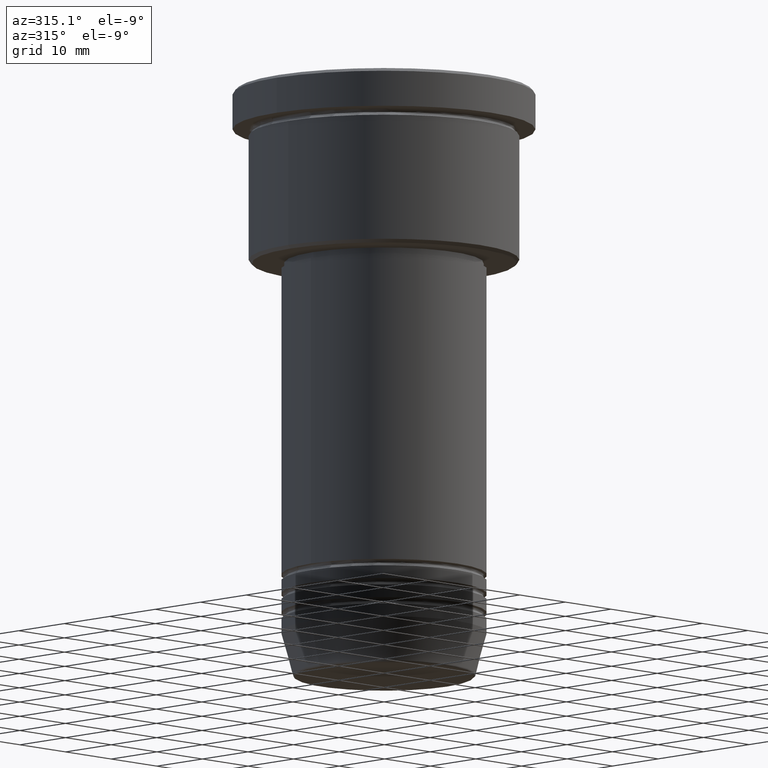
[diagram: clean part render]
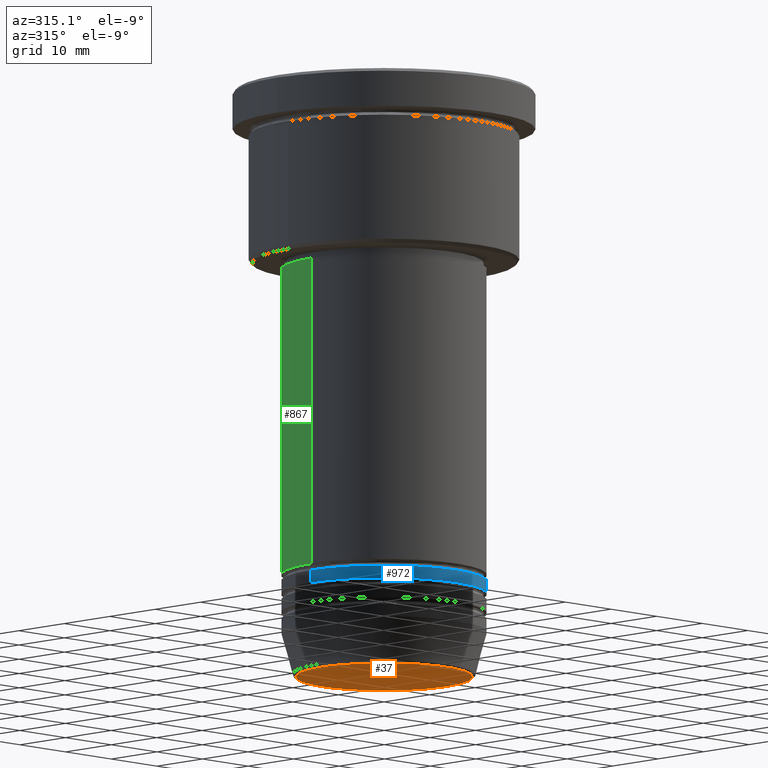
[diagram: same view with three faces highlighted in distinct colors, each labeled with its STEP entity id]
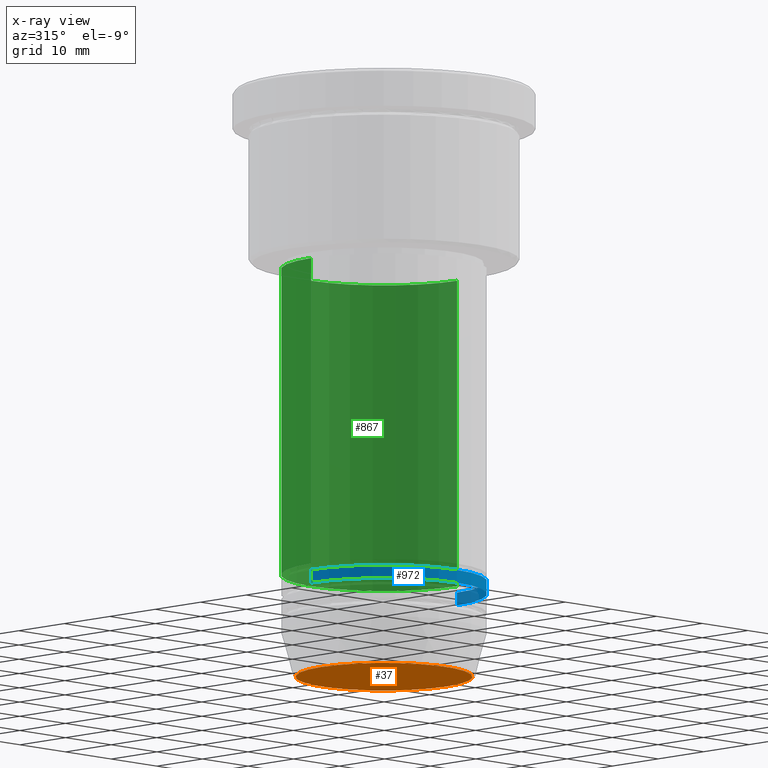
[diagram: x-ray of the same camera — body ghosted, the three highlighted faces saturated]
A machine part, auxiliary view with three faces highlighted in distinct colors.
The next image is the same camera in x-ray (body ghosted, the three faces saturated) — at least one of them is partly hidden behind the body in this view.
Their STEP definitions:

[orange] entity #37 — the highlighted planar face has unit normal (0, -0, 1).
#37 = ADVANCED_FACE ( 'NONE', ( #944 ), #130, .F. ) ;
#108 = ORIENTED_EDGE ( 'NONE', *, *, #751, .T. ) ;
#111 = DIRECTION ( 'NONE',  ( 0.000000000000000000, -0.000000000000000000, 1.000000000000000000 ) ) ;
#120 = EDGE_LOOP ( 'NONE', ( #287, #108 ) ) ;
#130 = PLANE ( 'NONE',  #836 ) ;
#153 = CARTESIAN_POINT ( 'NONE',  ( 13.74069215899265473, 0.000000000000000000, -92.00000000000000000 ) ) ;
#158 = CARTESIAN_POINT ( 'NONE',  ( 0.000000000000000000, 0.000000000000000000, -92.00000000000000000 ) ) ;
#204 = CIRCLE ( 'NONE', #356, 13.74069215899265473 ) ;
#216 = DIRECTION ( 'NONE',  ( 1.000000000000000000, 0.000000000000000000, 0.000000000000000000 ) ) ;
#271 = CARTESIAN_POINT ( 'NONE',  ( -13.74069215899265473, 1.712322416342415591E-15, -92.00000000000000000 ) ) ;
#287 = ORIENTED_EDGE ( 'NONE', *, *, #1147, .T. ) ;
#356 = AXIS2_PLACEMENT_3D ( 'NONE', #702, #687, #526 ) ;
#469 = AXIS2_PLACEMENT_3D ( 'NONE', #158, #1040, #611 ) ;
#526 = DIRECTION ( 'NONE',  ( 1.000000000000000000, 0.000000000000000000, 0.000000000000000000 ) ) ;
#605 = CIRCLE ( 'NONE', #469, 13.74069215899265473 ) ;
#611 = DIRECTION ( 'NONE',  ( 1.000000000000000000, 0.000000000000000000, 0.000000000000000000 ) ) ;
#687 = DIRECTION ( 'NONE',  ( 0.000000000000000000, 0.000000000000000000, -1.000000000000000000 ) ) ;
#702 = CARTESIAN_POINT ( 'NONE',  ( 0.000000000000000000, 0.000000000000000000, -92.00000000000000000 ) ) ;
#751 = EDGE_CURVE ( 'NONE', #796, #1134, #204, .T. ) ;
#796 = VERTEX_POINT ( 'NONE', #271 ) ;
#836 = AXIS2_PLACEMENT_3D ( 'NONE', #1020, #111, #216 ) ;
#944 = FACE_OUTER_BOUND ( 'NONE', #120, .T. ) ;
#1020 = CARTESIAN_POINT ( 'NONE',  ( 0.000000000000000000, 0.000000000000000000, -92.00000000000000000 ) ) ;
#1040 = DIRECTION ( 'NONE',  ( 0.000000000000000000, 0.000000000000000000, -1.000000000000000000 ) ) ;
#1134 = VERTEX_POINT ( 'NONE', #153 ) ;
#1147 = EDGE_CURVE ( 'NONE', #1134, #796, #605, .T. ) ;

[blue] entity #972 — the highlighted cylindrical surface (partial cylindrical patch) has radius 16 mm, axis along (-0, -0, 1).
#24 = DIRECTION ( 'NONE',  ( 1.000000000000000000, 0.000000000000000000, 0.000000000000000000 ) ) ;
#25 = ORIENTED_EDGE ( 'NONE', *, *, #849, .T. ) ;
#178 = EDGE_CURVE ( 'NONE', #878, #533, #1087, .T. ) ;
#230 = AXIS2_PLACEMENT_3D ( 'NONE', #531, #440, #1085 ) ;
#231 = DIRECTION ( 'NONE',  ( 1.000000000000000000, 0.000000000000000000, 0.000000000000000000 ) ) ;
#276 = CARTESIAN_POINT ( 'NONE',  ( -16.00000000000000000, 1.959434878635765131E-15, 0.000000000000000000 ) ) ;
#299 = CARTESIAN_POINT ( 'NONE',  ( 0.000000000000000000, 0.000000000000000000, 0.000000000000000000 ) ) ;
#313 = VERTEX_POINT ( 'NONE', #1173 ) ;
#343 = LINE ( 'NONE', #604, #1036 ) ;
#383 = VERTEX_POINT ( 'NONE', #458 ) ;
#440 = DIRECTION ( 'NONE',  ( -0.000000000000000000, -0.000000000000000000, 1.000000000000000000 ) ) ;
#458 = CARTESIAN_POINT ( 'NONE',  ( 16.00000000000000000, 0.000000000000000000, -76.99999999999997158 ) ) ;
#466 = AXIS2_PLACEMENT_3D ( 'NONE', #299, #1016, #231 ) ;
#525 = EDGE_CURVE ( 'NONE', #533, #383, #615, .T. ) ;
#531 = CARTESIAN_POINT ( 'NONE',  ( 0.000000000000000000, 0.000000000000000000, -78.99999999999997158 ) ) ;
#533 = VERTEX_POINT ( 'NONE', #665 ) ;
#542 = CARTESIAN_POINT ( 'NONE',  ( -16.00000000000000000, 1.959434878635765131E-15, -78.99999999999997158 ) ) ;
#578 = ORIENTED_EDGE ( 'NONE', *, *, #178, .F. ) ;
#581 = CIRCLE ( 'NONE', #230, 16.00000000000000000 ) ;
#604 = CARTESIAN_POINT ( 'NONE',  ( 16.00000000000000000, 0.000000000000000000, 0.000000000000000000 ) ) ;
#615 = CIRCLE ( 'NONE', #906, 16.00000000000000000 ) ;
#622 = EDGE_CURVE ( 'NONE', #313, #383, #343, .T. ) ;
#665 = CARTESIAN_POINT ( 'NONE',  ( -16.00000000000000000, 1.959434878635765131E-15, -76.99999999999997158 ) ) ;
#749 = ORIENTED_EDGE ( 'NONE', *, *, #525, .F. ) ;
#787 = DIRECTION ( 'NONE',  ( -0.000000000000000000, -0.000000000000000000, 1.000000000000000000 ) ) ;
#809 = VECTOR ( 'NONE', #787, 1000.000000000000000 ) ;
#845 = CARTESIAN_POINT ( 'NONE',  ( 0.000000000000000000, 0.000000000000000000, -76.99999999999997158 ) ) ;
#849 = EDGE_CURVE ( 'NONE', #878, #313, #581, .T. ) ;
#859 = CYLINDRICAL_SURFACE ( 'NONE', #466, 16.00000000000000000 ) ;
#878 = VERTEX_POINT ( 'NONE', #542 ) ;
#906 = AXIS2_PLACEMENT_3D ( 'NONE', #845, #1025, #24 ) ;
#956 = DIRECTION ( 'NONE',  ( -0.000000000000000000, -0.000000000000000000, 1.000000000000000000 ) ) ;
#972 = ADVANCED_FACE ( 'NONE', ( #1120 ), #859, .T. ) ;
#1004 = ORIENTED_EDGE ( 'NONE', *, *, #622, .T. ) ;
#1016 = DIRECTION ( 'NONE',  ( -0.000000000000000000, -0.000000000000000000, 1.000000000000000000 ) ) ;
#1025 = DIRECTION ( 'NONE',  ( -0.000000000000000000, -0.000000000000000000, 1.000000000000000000 ) ) ;
#1036 = VECTOR ( 'NONE', #956, 1000.000000000000000 ) ;
#1039 = EDGE_LOOP ( 'NONE', ( #578, #25, #1004, #749 ) ) ;
#1085 = DIRECTION ( 'NONE',  ( 1.000000000000000000, 0.000000000000000000, 0.000000000000000000 ) ) ;
#1087 = LINE ( 'NONE', #276, #809 ) ;
#1120 = FACE_OUTER_BOUND ( 'NONE', #1039, .T. ) ;
#1173 = CARTESIAN_POINT ( 'NONE',  ( 16.00000000000000000, 0.000000000000000000, -78.99999999999997158 ) ) ;

[green] entity #867 — the highlighted cylindrical surface (partial cylindrical patch) has radius 16 mm, axis along (-0, -0, 1).
#13 = CIRCLE ( 'NONE', #1103, 16.00000000000000000 ) ;
#52 = VERTEX_POINT ( 'NONE', #937 ) ;
#56 = EDGE_CURVE ( 'NONE', #405, #1064, #13, .T. ) ;
#106 = VERTEX_POINT ( 'NONE', #574 ) ;
#119 = CARTESIAN_POINT ( 'NONE',  ( 0.000000000000000000, 0.000000000000000000, -75.99999999999997158 ) ) ;
#148 = ORIENTED_EDGE ( 'NONE', *, *, #1065, .T. ) ;
#171 = ORIENTED_EDGE ( 'NONE', *, *, #56, .T. ) ;
#187 = DIRECTION ( 'NONE',  ( -0.000000000000000000, -0.000000000000000000, 1.000000000000000000 ) ) ;
#221 = CARTESIAN_POINT ( 'NONE',  ( -16.00000000000000000, 1.959434878635765131E-15, 0.000000000000000000 ) ) ;
#255 = DIRECTION ( 'NONE',  ( -0.000000000000000000, -0.000000000000000000, 1.000000000000000000 ) ) ;
#264 = DIRECTION ( 'NONE',  ( 1.000000000000000000, 0.000000000000000000, 0.000000000000000000 ) ) ;
#275 = CARTESIAN_POINT ( 'NONE',  ( 16.00000000000000000, 0.000000000000000000, 0.000000000000000000 ) ) ;
#307 = CARTESIAN_POINT ( 'NONE',  ( -16.00000000000000000, 1.959434878635765131E-15, -75.99999999999997158 ) ) ;
#310 = LINE ( 'NONE', #221, #358 ) ;
#342 = AXIS2_PLACEMENT_3D ( 'NONE', #351, #995, #264 ) ;
#351 = CARTESIAN_POINT ( 'NONE',  ( 0.000000000000000000, 0.000000000000000000, 0.000000000000000000 ) ) ;
#358 = VECTOR ( 'NONE', #1054, 1000.000000000000000 ) ;
#376 = CIRCLE ( 'NONE', #1136, 16.00000000000000000 ) ;
#392 = VECTOR ( 'NONE', #187, 1000.000000000000000 ) ;
#405 = VERTEX_POINT ( 'NONE', #549 ) ;
#514 = ORIENTED_EDGE ( 'NONE', *, *, #1027, .F. ) ;
#549 = CARTESIAN_POINT ( 'NONE',  ( 16.00000000000000000, 0.000000000000000000, -75.99999999999997158 ) ) ;
#552 = FACE_OUTER_BOUND ( 'NONE', #639, .T. ) ;
#574 = CARTESIAN_POINT ( 'NONE',  ( 16.00000000000000000, 0.000000000000000000, -27.99999999999996803 ) ) ;
#617 = LINE ( 'NONE', #275, #392 ) ;
#626 = CYLINDRICAL_SURFACE ( 'NONE', #342, 16.00000000000000000 ) ;
#639 = EDGE_LOOP ( 'NONE', ( #171, #148, #514, #801 ) ) ;
#683 = DIRECTION ( 'NONE',  ( 1.000000000000000000, 0.000000000000000000, 0.000000000000000000 ) ) ;
#775 = EDGE_CURVE ( 'NONE', #405, #106, #617, .T. ) ;
#801 = ORIENTED_EDGE ( 'NONE', *, *, #775, .F. ) ;
#867 = ADVANCED_FACE ( 'NONE', ( #552 ), #626, .T. ) ;
#930 = DIRECTION ( 'NONE',  ( 1.000000000000000000, 0.000000000000000000, 0.000000000000000000 ) ) ;
#935 = CARTESIAN_POINT ( 'NONE',  ( 0.000000000000000000, 0.000000000000000000, -27.99999999999996803 ) ) ;
#937 = CARTESIAN_POINT ( 'NONE',  ( -16.00000000000000000, 1.959434878635765131E-15, -27.99999999999996803 ) ) ;
#995 = DIRECTION ( 'NONE',  ( -0.000000000000000000, -0.000000000000000000, 1.000000000000000000 ) ) ;
#1027 = EDGE_CURVE ( 'NONE', #106, #52, #376, .T. ) ;
#1054 = DIRECTION ( 'NONE',  ( -0.000000000000000000, -0.000000000000000000, 1.000000000000000000 ) ) ;
#1064 = VERTEX_POINT ( 'NONE', #307 ) ;
#1065 = EDGE_CURVE ( 'NONE', #1064, #52, #310, .T. ) ;
#1103 = AXIS2_PLACEMENT_3D ( 'NONE', #119, #255, #683 ) ;
#1106 = DIRECTION ( 'NONE',  ( -0.000000000000000000, -0.000000000000000000, 1.000000000000000000 ) ) ;
#1136 = AXIS2_PLACEMENT_3D ( 'NONE', #935, #1106, #930 ) ;